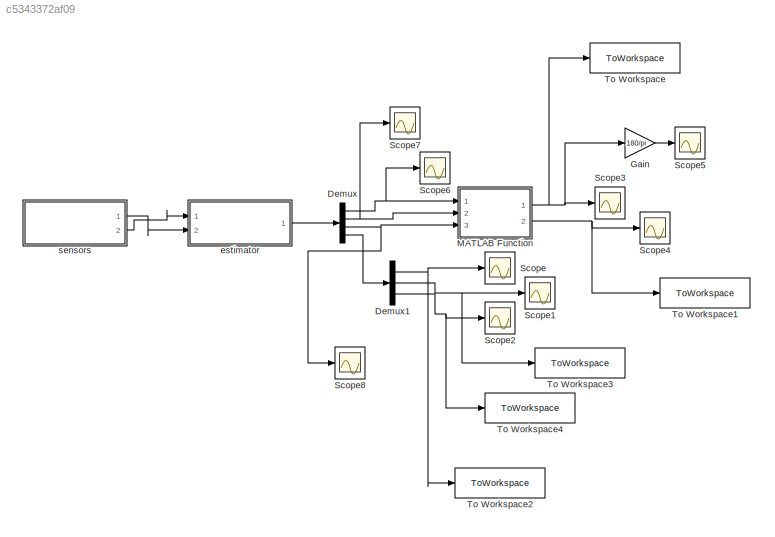
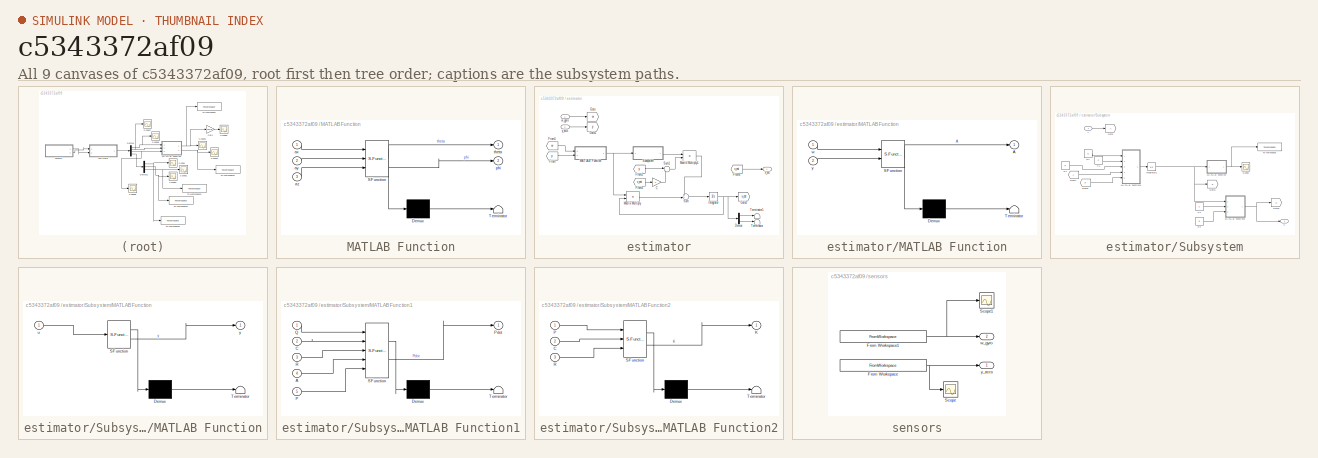
[diagram: thumbnail index - all 9 canvases of the model, root first then tree order]
MODEL slx_c5343372af09
KIND model
CONFIG AbsTol = auto
CONFIG EnableMultiTasking = off
CONFIG FixedStep = auto
CONFIG MaxStep = auto
CONFIG MinStep = auto
CONFIG RelTol = 1e-3
CONFIG SampleTimeConstraint = Unconstrained
CONFIG SolverName = VariableStepAuto
CONFIG StartTime = 0.0
CONFIG StopTime = 30
BLOCK [Demux] Demux
  Outputs = [1 1 1 3]
  Ports = [1, 4]
BLOCK [Demux] Demux1
  Outputs = [1 1 1]
  Ports = [1, 3]
BLOCK [Gain] Gain
  Gain = 180/pi
BLOCK [SubSystem] MATLAB Function
  ErrorFcn = Stateflow.Translate.translate
  PermitHierarchicalResolution = ExplicitOnly
  Ports = [3, 2]
  RequestExecContextInheritance = off
  SFBlockType = MATLAB Function
  TreatAsAtomicUnit = on
BLOCK [Demux] MATLAB Function/ Demux 
  Outputs = 1
  Ports = [1, 1]
BLOCK [S-Function] MATLAB Function/ SFunction 
  EnableBusSupport = on
  FunctionName = sf_sfun
  PortCounts = [3 3]
  Ports = [3, 3]
  SFcnIsStateOwnerBlock = off
  SFunctionDeploymentMode = off
  Tag = Stateflow S-Function 1
BLOCK [Terminator] MATLAB Function/ Terminator 
BLOCK [Inport] MATLAB Function/ax
BLOCK [Inport] MATLAB Function/ay
  Port = 2
BLOCK [Inport] MATLAB Function/az
  Port = 3
BLOCK [Outport] MATLAB Function/phi
  Port = 2
BLOCK [Outport] MATLAB Function/theta
BLOCK [Scope] Scope
  Floating = off
  NumInputPorts = 1
  Ports = [1]
  ScopeSpecificationString = Simulink.scopes.TimeScopeBlockCfg('CurrentConfiguration', extmgr.ConfigurationSet(extmgr.Configuration('Core','General UI',true),extmgr.Configuration('Core','Source UI',true),extmgr.Configuration('Sources','WiredSimulink',true),extmgr.Configuration('Visuals','Time Domain',true,'SerializedDisplays',{struct('MinYLimReal','-0.09811','MaxYLimReal','0.05208','YLabelReal','','MinYLimMag','0.00000','MaxY...<+1401ch>
BLOCK [Scope] Scope1
  Floating = off
  NumInputPorts = 1
  Ports = [1]
  ScopeSpecificationString = Simulink.scopes.TimeScopeBlockCfg('CurrentConfiguration', extmgr.ConfigurationSet(extmgr.Configuration('Core','General UI',true),extmgr.Configuration('Core','Source UI',true),extmgr.Configuration('Sources','WiredSimulink',true,'DataLoggingVariableName','ScopeData1'),extmgr.Configuration('Visuals','Time Domain',true,'SerializedDisplays',{struct('MinYLimReal','-0.14098','MaxYLimReal','0.06479','YLab...<+1439ch>
BLOCK [Scope] Scope2
  Floating = off
  NumInputPorts = 1
  Ports = [1]
  ScopeSpecificationString = Simulink.scopes.TimeScopeBlockCfg('CurrentConfiguration', extmgr.ConfigurationSet(extmgr.Configuration('Core','General UI',true),extmgr.Configuration('Core','Source UI',true),extmgr.Configuration('Sources','WiredSimulink',true,'DataLoggingVariableName','ScopeData2'),extmgr.Configuration('Visuals','Time Domain',true,'SerializedDisplays',{struct('MinYLimReal','-1.05993','MaxYLimReal','0.12413','YLab...<+1421ch>
BLOCK [Scope] Scope3
  Floating = off
  NumInputPorts = 1
  Ports = [1]
  ScopeSpecificationString = Simulink.scopes.TimeScopeBlockCfg('CurrentConfiguration', extmgr.ConfigurationSet(extmgr.Configuration('Core','General UI',true),extmgr.Configuration('Core','Source UI',true),extmgr.Configuration('Sources','WiredSimulink',true,'DataLoggingVariableName','ScopeData1'),extmgr.Configuration('Visuals','Time Domain',true,'SerializedDisplays',{struct('MinYLimReal','-0.12861','MaxYLimReal','0.15898','YLab...<+1434ch>
BLOCK [Scope] Scope4
  Floating = off
  NumInputPorts = 1
  Ports = [1]
  ScopeSpecificationString = Simulink.scopes.TimeScopeBlockCfg('CurrentConfiguration', extmgr.ConfigurationSet(extmgr.Configuration('Core','General UI',true),extmgr.Configuration('Core','Source UI',true),extmgr.Configuration('Sources','WiredSimulink',true,'DataLoggingVariableName','ScopeData2'),extmgr.Configuration('Visuals','Time Domain',true,'SerializedDisplays',{struct('MinYLimReal','-0.12331','MaxYLimReal','0.11471','YLab...<+1451ch>
BLOCK [Scope] Scope5
  Floating = off
  NumInputPorts = 1
  Ports = [1]
  ScopeSpecificationString = Simulink.scopes.TimeScopeBlockCfg('CurrentConfiguration', extmgr.ConfigurationSet(extmgr.Configuration('Core','General UI',true),extmgr.Configuration('Core','Source UI',true),extmgr.Configuration('Sources','WiredSimulink',true,'DataLoggingVariableName','ScopeData3'),extmgr.Configuration('Visuals','Time Domain',true,'SerializedDisplays',{struct('MinYLimReal','-7.3688','MaxYLimReal','9.10903','YLabe...<+1433ch>
BLOCK [Scope] Scope6
  Floating = off
  NumInputPorts = 1
  Ports = [1]
  ScopeSpecificationString = Simulink.scopes.TimeScopeBlockCfg('CurrentConfiguration', extmgr.ConfigurationSet(extmgr.Configuration('Core','General UI',true),extmgr.Configuration('Core','Source UI',true),extmgr.Configuration('Sources','WiredSimulink',true,'DataLoggingVariableName','ScopeData2'),extmgr.Configuration('Visuals','Time Domain',true,'SerializedDisplays',{struct('MinYLimReal','-1.2581','MaxYLimReal','1.55377','YLabe...<+1419ch>
BLOCK [Scope] Scope7
  Floating = off
  NumInputPorts = 1
  Ports = [1]
  ScopeSpecificationString = Simulink.scopes.TimeScopeBlockCfg('CurrentConfiguration', extmgr.ConfigurationSet(extmgr.Configuration('Core','General UI',true),extmgr.Configuration('Core','Source UI',true),extmgr.Configuration('Sources','WiredSimulink',true,'DataLoggingVariableName','ScopeData3'),extmgr.Configuration('Visuals','Time Domain',true,'SerializedDisplays',{struct('MinYLimReal','-1.15432','MaxYLimReal','1.2424','YLabe...<+1417ch>
BLOCK [Scope] Scope8
  Floating = off
  NumInputPorts = 1
  Ports = [1]
  ScopeSpecificationString = Simulink.scopes.TimeScopeBlockCfg('CurrentConfiguration', extmgr.ConfigurationSet(extmgr.Configuration('Core','General UI',true),extmgr.Configuration('Core','Source UI',true),extmgr.Configuration('Sources','WiredSimulink',true,'DataLoggingVariableName','ScopeData4'),extmgr.Configuration('Visuals','Time Domain',true,'SerializedDisplays',{struct('MinYLimReal','-11.6049','MaxYLimReal','1.28943','YLab...<+1441ch>
BLOCK [ToWorkspace] To Workspace
  FixptAsFi = on
  MaxDataPoints = inf
  Ports = [1]
  SampleTime = -1
  SaveFormat = Timeseries
  VariableName = theta
BLOCK [ToWorkspace] To Workspace1
  FixptAsFi = on
  MaxDataPoints = inf
  Ports = [1]
  SampleTime = -1
  SaveFormat = Timeseries
  VariableName = phi
BLOCK [ToWorkspace] To Workspace2
  FixptAsFi = on
  MaxDataPoints = inf
  Ports = [1]
  SampleTime = -1
  SaveFormat = Timeseries
  VariableName = bx
BLOCK [ToWorkspace] To Workspace3
  FixptAsFi = on
  MaxDataPoints = inf
  Ports = [1]
  SampleTime = -1
  SaveFormat = Timeseries
  VariableName = by
BLOCK [ToWorkspace] To Workspace4
  FixptAsFi = on
  MaxDataPoints = inf
  Ports = [1]
  SampleTime = -1
  SaveFormat = Timeseries
  VariableName = bz
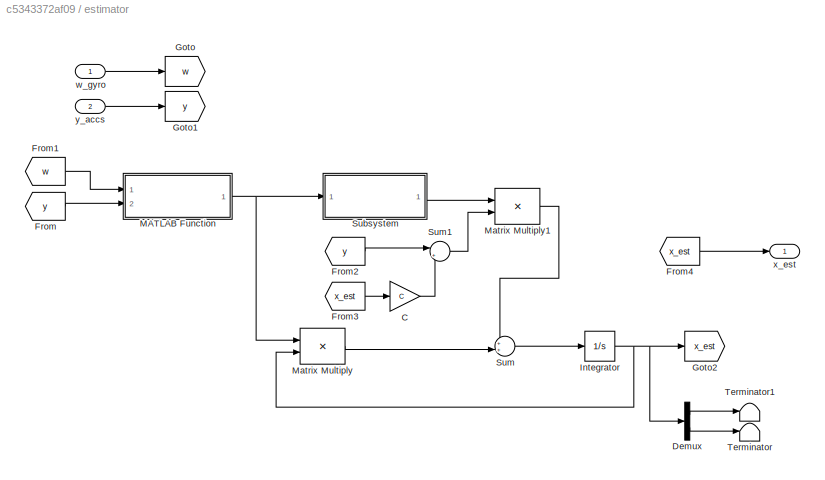
BLOCK [SubSystem] estimator
  Ports = [2, 1]
  RequestExecContextInheritance = off
BLOCK [Gain] estimator/C
  Gain = C
  Multiplication = Matrix(K*u)
BLOCK [Demux] estimator/Demux
  Outputs = [3 3]
  Ports = [1, 2]
BLOCK [From] estimator/From
  GotoTag = y
BLOCK [From] estimator/From1
  GotoTag = w
BLOCK [From] estimator/From2
  GotoTag = y
BLOCK [From] estimator/From3
  GotoTag = x_est
BLOCK [From] estimator/From4
  GotoTag = x_est
BLOCK [Goto] estimator/Goto
  GotoTag = w
BLOCK [Goto] estimator/Goto1
  GotoTag = y
BLOCK [Goto] estimator/Goto2
  GotoTag = x_est
BLOCK [Integrator] estimator/Integrator
  Ports = [1, 1]
BLOCK [SubSystem] estimator/MATLAB Function
  ErrorFcn = Stateflow.Translate.translate
  PermitHierarchicalResolution = ExplicitOnly
  Ports = [2, 1]
  RequestExecContextInheritance = off
  SFBlockType = MATLAB Function
  TreatAsAtomicUnit = on
BLOCK [Demux] estimator/MATLAB Function/ Demux 
  Outputs = 1
  Ports = [1, 1]
BLOCK [S-Function] estimator/MATLAB Function/ SFunction 
  EnableBusSupport = on
  FunctionName = sf_sfun
  PortCounts = [2 2]
  Ports = [2, 2]
  SFcnIsStateOwnerBlock = off
  SFunctionDeploymentMode = off
  Tag = Stateflow S-Function 2
BLOCK [Terminator] estimator/MATLAB Function/ Terminator 
BLOCK [Outport] estimator/MATLAB Function/A
BLOCK [Inport] estimator/MATLAB Function/w
BLOCK [Inport] estimator/MATLAB Function/y
  Port = 2
BLOCK [Product] estimator/Matrix Multiply
  Multiplication = Matrix(*)
  Ports = [2, 1]
BLOCK [Product] estimator/Matrix Multiply1
  Multiplication = Matrix(*)
  Ports = [2, 1]
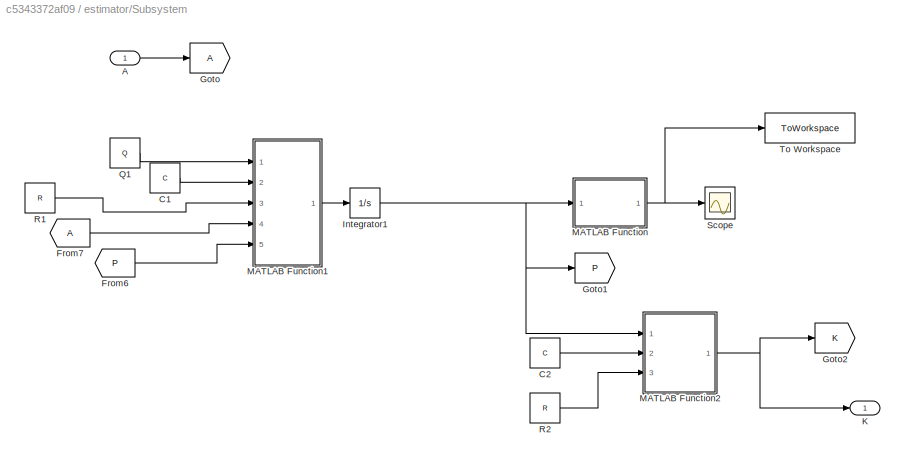
BLOCK [SubSystem] estimator/Subsystem
  Ports = [1, 1]
  RequestExecContextInheritance = off
BLOCK [Inport] estimator/Subsystem/A
BLOCK [Constant] estimator/Subsystem/C1
  Value = C
BLOCK [Constant] estimator/Subsystem/C2
  Value = C
BLOCK [From] estimator/Subsystem/From6
  GotoTag = P
BLOCK [From] estimator/Subsystem/From7
BLOCK [Goto] estimator/Subsystem/Goto
BLOCK [Goto] estimator/Subsystem/Goto1
  GotoTag = P
BLOCK [Goto] estimator/Subsystem/Goto2
  GotoTag = K
BLOCK [Integrator] estimator/Subsystem/Integrator1
  InitialCondition = eye(6)
  Ports = [1, 1]
BLOCK [Outport] estimator/Subsystem/K
BLOCK [SubSystem] estimator/Subsystem/MATLAB Function
  ErrorFcn = Stateflow.Translate.translate
  PermitHierarchicalResolution = ExplicitOnly
  Ports = [1, 1]
  RequestExecContextInheritance = off
  SFBlockType = MATLAB Function
  TreatAsAtomicUnit = on
BLOCK [Demux] estimator/Subsystem/MATLAB Function/ Demux 
  Outputs = 1
  Ports = [1, 1]
BLOCK [S-Function] estimator/Subsystem/MATLAB Function/ SFunction 
  EnableBusSupport = on
  FunctionName = sf_sfun
  PortCounts = [1 2]
  Ports = [1, 2]
  SFcnIsStateOwnerBlock = off
  SFunctionDeploymentMode = off
  Tag = Stateflow S-Function 3
BLOCK [Terminator] estimator/Subsystem/MATLAB Function/ Terminator 
BLOCK [Inport] estimator/Subsystem/MATLAB Function/u
BLOCK [Outport] estimator/Subsystem/MATLAB Function/y
BLOCK [SubSystem] estimator/Subsystem/MATLAB Function1
  ErrorFcn = Stateflow.Translate.translate
  PermitHierarchicalResolution = ExplicitOnly
  Ports = [5, 1]
  RequestExecContextInheritance = off
  SFBlockType = MATLAB Function
  TreatAsAtomicUnit = on
BLOCK [Demux] estimator/Subsystem/MATLAB Function1/ Demux 
  Outputs = 1
  Ports = [1, 1]
BLOCK [S-Function] estimator/Subsystem/MATLAB Function1/ SFunction 
  EnableBusSupport = on
  FunctionName = sf_sfun
  PortCounts = [5 2]
  Ports = [5, 2]
  SFcnIsStateOwnerBlock = off
  SFunctionDeploymentMode = off
  Tag = Stateflow S-Function 4
BLOCK [Terminator] estimator/Subsystem/MATLAB Function1/ Terminator 
BLOCK [Inport] estimator/Subsystem/MATLAB Function1/A
  Port = 4
BLOCK [Inport] estimator/Subsystem/MATLAB Function1/C
  Port = 2
BLOCK [Inport] estimator/Subsystem/MATLAB Function1/P
  Port = 5
BLOCK [Outport] estimator/Subsystem/MATLAB Function1/Pdot
BLOCK [Inport] estimator/Subsystem/MATLAB Function1/Q
BLOCK [Inport] estimator/Subsystem/MATLAB Function1/R
  Port = 3
BLOCK [SubSystem] estimator/Subsystem/MATLAB Function2
  ErrorFcn = Stateflow.Translate.translate
  PermitHierarchicalResolution = ExplicitOnly
  Ports = [3, 1]
  RequestExecContextInheritance = off
  SFBlockType = MATLAB Function
  TreatAsAtomicUnit = on
BLOCK [Demux] estimator/Subsystem/MATLAB Function2/ Demux 
  Outputs = 1
  Ports = [1, 1]
BLOCK [S-Function] estimator/Subsystem/MATLAB Function2/ SFunction 
  EnableBusSupport = on
  FunctionName = sf_sfun
  PortCounts = [3 2]
  Ports = [3, 2]
  SFcnIsStateOwnerBlock = off
  SFunctionDeploymentMode = off
  Tag = Stateflow S-Function 5
BLOCK [Terminator] estimator/Subsystem/MATLAB Function2/ Terminator 
BLOCK [Inport] estimator/Subsystem/MATLAB Function2/C
  Port = 2
BLOCK [Outport] estimator/Subsystem/MATLAB Function2/K
BLOCK [Inport] estimator/Subsystem/MATLAB Function2/P
BLOCK [Inport] estimator/Subsystem/MATLAB Function2/R
  Port = 3
BLOCK [Constant] estimator/Subsystem/Q1
  Value = Q
BLOCK [Constant] estimator/Subsystem/R1
  Value = R
BLOCK [Constant] estimator/Subsystem/R2
  Value = R
BLOCK [Scope] estimator/Subsystem/Scope
  Floating = off
  NumInputPorts = 1
  Ports = [1]
  ScopeSpecificationString = Simulink.scopes.TimeScopeBlockCfg('CurrentConfiguration', extmgr.ConfigurationSet(extmgr.Configuration('Core','General UI',true),extmgr.Configuration('Core','Source UI',true),extmgr.Configuration('Sources','WiredSimulink',true,'DataLoggingVariableName','ScopeData1'),extmgr.Configuration('Visuals','Time Domain',true,'SerializedDisplays',{struct('MinYLimReal','-0.22489','MaxYLimReal','1.2186','YLabe...<+1446ch>
BLOCK [ToWorkspace] estimator/Subsystem/To Workspace
  FixptAsFi = on
  MaxDataPoints = inf
  Ports = [1]
  SampleTime = -1
  SaveFormat = Timeseries
  VariableName = traceP
BLOCK [Sum] estimator/Sum
  Inputs = ++|
  Ports = [2, 1]
BLOCK [Sum] estimator/Sum1
  Inputs = |+-
  Ports = [2, 1]
BLOCK [Terminator] estimator/Terminator
BLOCK [Terminator] estimator/Terminator1
BLOCK [Inport] estimator/w_gyro
BLOCK [Outport] estimator/x_est
BLOCK [Inport] estimator/y_accs
  Port = 2
BLOCK [SubSystem] sensors
  Ports = [0, 2]
  RequestExecContextInheritance = off
BLOCK [FromWorkspace] sensors/From Workspace
  VariableName = [navdata.time, phys_accs*9.8/1000]
BLOCK [FromWorkspace] sensors/From Workspace1
  VariableName = [navdata.time,phys_gyros*pi/180]
BLOCK [Scope] sensors/Scope
  Floating = off
  NumInputPorts = 1
  Ports = [1]
  ScopeSpecificationString = Simulink.scopes.TimeScopeBlockCfg('CurrentConfiguration', extmgr.ConfigurationSet(extmgr.Configuration('Core','General UI',true),extmgr.Configuration('Core','Source UI',true),extmgr.Configuration('Sources','WiredSimulink',true,'DataLoggingVariableName','ScopeData1'),extmgr.Configuration('Visuals','Time Domain',true,'SerializedDisplays',{struct('MinYLimReal','-15.21663','MaxYLimReal','2.19831','YLa...<+1487ch>
BLOCK [Scope] sensors/Scope1
  Floating = off
  NumInputPorts = 1
  Ports = [1]
  ScopeSpecificationString = Simulink.scopes.TimeScopeBlockCfg('CurrentConfiguration', extmgr.ConfigurationSet(extmgr.Configuration('Core','General UI',true),extmgr.Configuration('Core','Source UI',true),extmgr.Configuration('Sources','WiredSimulink',true,'DataLoggingVariableName','ScopeData1'),extmgr.Configuration('Visuals','Time Domain',true,'SerializedDisplays',{struct('MinYLimReal','-0.75957','MaxYLimReal','1.93198','YLab...<+1486ch>
BLOCK [Outport] sensors/w_gyro
  Port = 2
BLOCK [Outport] sensors/y_accs
NET Demux1:1 -> Scope:1, To Workspace2:1
NET Demux1:2 -> Scope1:1, To Workspace3:1
NET Demux1:3 -> Scope2:1, To Workspace4:1
NET Demux:1 -> MATLAB Function:1, Scope6:1
NET Demux:2 -> MATLAB Function:2, Scope7:1
NET Demux:3 -> MATLAB Function:3, Scope8:1
LINE Demux:4 -> Demux1:1
LINE Gain:1 -> Scope5:1
NET MATLAB Function:1 -> Gain:1, Scope3:1, To Workspace:1
NET MATLAB Function:2 -> Scope4:1, To Workspace1:1
LINE estimator/C:1 -> estimator/Sum1:2
LINE estimator/Demux:1 -> estimator/Terminator1:1
LINE estimator/Demux:2 -> estimator/Terminator:1
LINE estimator/From1:1 -> estimator/MATLAB Function:1
LINE estimator/From2:1 -> estimator/Sum1:1
LINE estimator/From3:1 -> estimator/C:1
LINE estimator/From4:1 -> estimator/x_est:1
LINE estimator/From:1 -> estimator/MATLAB Function:2
NET estimator/Integrator:1 -> estimator/Demux:1, estimator/Goto2:1, estimator/Matrix Multiply:2
NET estimator/MATLAB Function:1 -> estimator/Matrix Multiply:1, estimator/Subsystem:1
LINE estimator/Matrix Multiply1:1 -> estimator/Sum:1
LINE estimator/Matrix Multiply:1 -> estimator/Sum:2
LINE estimator/Subsystem/A:1 -> estimator/Subsystem/Goto:1
LINE estimator/Subsystem/C1:1 -> estimator/Subsystem/MATLAB Function1:2
LINE estimator/Subsystem/C2:1 -> estimator/Subsystem/MATLAB Function2:2
LINE estimator/Subsystem/From6:1 -> estimator/Subsystem/MATLAB Function1:5
LINE estimator/Subsystem/From7:1 -> estimator/Subsystem/MATLAB Function1:4
NET estimator/Subsystem/Integrator1:1 -> estimator/Subsystem/Goto1:1, estimator/Subsystem/MATLAB Function2:1, estimator/Subsystem/MATLAB Function:1
LINE estimator/Subsystem/MATLAB Function1:1 -> estimator/Subsystem/Integrator1:1
NET estimator/Subsystem/MATLAB Function2:1 -> estimator/Subsystem/Goto2:1, estimator/Subsystem/K:1
NET estimator/Subsystem/MATLAB Function:1 -> estimator/Subsystem/Scope:1, estimator/Subsystem/To Workspace:1
LINE estimator/Subsystem/Q1:1 -> estimator/Subsystem/MATLAB Function1:1
LINE estimator/Subsystem/R1:1 -> estimator/Subsystem/MATLAB Function1:3
LINE estimator/Subsystem/R2:1 -> estimator/Subsystem/MATLAB Function2:3
LINE estimator/Subsystem:1 -> estimator/Matrix Multiply1:1
LINE estimator/Sum1:1 -> estimator/Matrix Multiply1:2
LINE estimator/Sum:1 -> estimator/Integrator:1
LINE estimator/w_gyro:1 -> estimator/Goto:1
LINE estimator/y_accs:1 -> estimator/Goto1:1
LINE estimator:1 -> Demux:1
NET sensors/From Workspace1:1 -> sensors/Scope1:1, sensors/w_gyro:1
NET sensors/From Workspace:1 -> sensors/Scope:1, sensors/y_accs:1
LINE sensors:1 -> estimator:2
LINE sensors:2 -> estimator:1
note: NET lines group one-source signal fan-out (src -> all destinations, sorted); 1:1 wires keep LINE
CHART MATLAB Function states=1 transitions=1
  STATE_LABEL 'eML_blk_kernel()'
  STATE_LABEL 'SCRIPT:\nfunction [theta, phi] = fcn(ax,ay,az)\n    % need to see if the formulas are right\n    %theta=atan2(ax, sqrt(az^2 + ay^2));\n    theta=asin(ax/9.8);\n    phi=atan(ay/az);\n\nend\n'
CHART estimator/MATLAB Function states=1 transitions=1
  STATE_LABEL 'eML_blk_kernel()'
  STATE_LABEL 'SCRIPT:\nfunction A = calculate_A(w, y)\n    aux1 = -[0, -w(3), w(2); \n             w(3), 0, -w(1);\n             -w(2), w(1), 0];\n    aux2 = -[0, -y(3), y(2);\n            y(3), 0, -y(1);\n            -y(2), y(1), 0];   \n    \nA = [aux1 , aux2; zeros(3), zeros(3)];\n'
CHART estimator/Subsystem/MATLAB Function states=1 transitions=1
  STATE_LABEL 'eML_blk_kernel()'
  STATE_LABEL 'SCRIPT:\nfunction y = fcn(u)\n\ny = trace(u);\n'
CHART estimator/Subsystem/MATLAB Function1 states=1 transitions=1
  STATE_LABEL 'eML_blk_kernel()'
  STATE_LABEL "SCRIPT:\nfunction Pdot = fcn(Q,C,R,A,P)\n    Pdot=A*P + P*A' +Q -P*C'/R*C*P;\nend\n"
CHART estimator/Subsystem/MATLAB Function2 states=1 transitions=1
  STATE_LABEL 'eML_blk_kernel()'
  STATE_LABEL "SCRIPT:\nfunction K = fcn(P,C,R)\n    K=P*C'/R;\nend\n"
CHART  states=0 transitions=0
CHART  states=0 transitions=0
CHART  states=0 transitions=0
CHART  states=0 transitions=0
CHART  states=0 transitions=0
